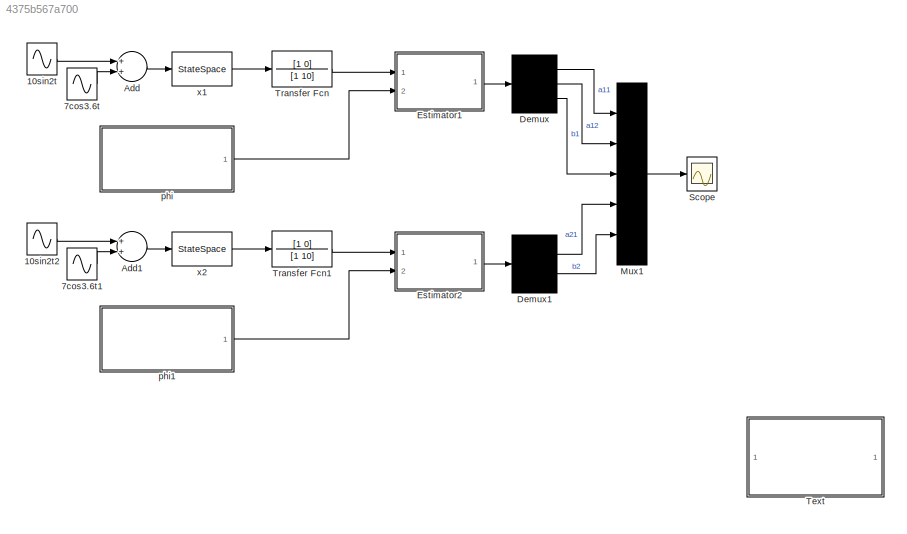
MODEL slx_4375b567a700
KIND model
CONFIG AbsTol = 1e-3
CONFIG FixedStep = auto
CONFIG MaxStep = 0.1
CONFIG MinStep = 0.0001
CONFIG RelTol = 1e-3
CONFIG SampleTimeConstraint = Unconstrained
CONFIG Solver = ode45
CONFIG SolverMode = Auto
CONFIG SolverName = ode45
CONFIG StartTime = 0.0
CONFIG StopTime = 50
BLOCK [Sin] 10sin2t
  Amplitude = 10
  Frequency = 2
  Ports = [0, 1]
BLOCK [Sin] 10sin2t2
  Amplitude = 10
  Frequency = 2
  Ports = [0, 1]
BLOCK [Sin] 7cos3.6t
  Amplitude = 7
  Frequency = 3.6
  Phase = 90
  Ports = [0, 1]
BLOCK [Sin] 7cos3.6t1
  Amplitude = 7
  Frequency = 3.6
  Phase = 90
  Ports = [0, 1]
BLOCK [Sum] Add
  InputSameDT = off
  OutDataTypeStr = Inherit: Inherit via internal rule
  Ports = [2, 1]
  SaturateOnIntegerOverflow = off
BLOCK [Sum] Add1
  InputSameDT = off
  OutDataTypeStr = Inherit: Inherit via internal rule
  Ports = [2, 1]
  SaturateOnIntegerOverflow = off
BLOCK [Demux] Demux
  Outputs = 3
  Ports = [1, 3]
BLOCK [Demux] Demux1
  Outputs = 2
  Ports = [1, 2]
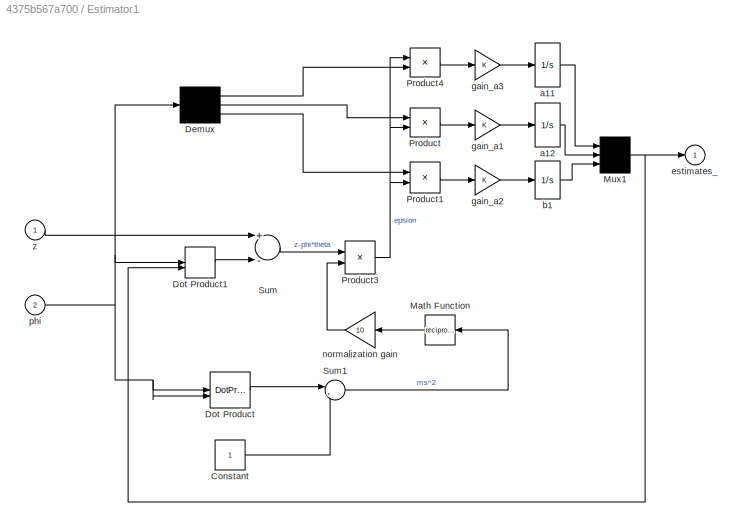
BLOCK [SubSystem] Estimator1
  Ports = [2, 1]
  RequestExecContextInheritance = off
  ShowPortLabels = none
BLOCK [Constant] Estimator1/Constant
BLOCK [Demux] Estimator1/Demux
  Outputs = 3
  Ports = [1, 3]
BLOCK [DotProduct] Estimator1/Dot Product
  OutDataTypeStr = Inherit: Inherit via internal rule
BLOCK [DotProduct] Estimator1/Dot Product1
  OutDataTypeStr = Inherit: Inherit via internal rule
BLOCK [Math] Estimator1/Math Function
  Operator = reciprocal
  Ports = [1, 1]
BLOCK [Mux] Estimator1/Mux1
  Inputs = 3
  Ports = [3, 1]
BLOCK [Product] Estimator1/Product
  Ports = [2, 1]
BLOCK [Product] Estimator1/Product1
  Ports = [2, 1]
BLOCK [Product] Estimator1/Product3
  Ports = [2, 1]
BLOCK [Product] Estimator1/Product4
  Ports = [2, 1]
BLOCK [Sum] Estimator1/Sum
  Inputs = +-
  Ports = [2, 1]
BLOCK [Sum] Estimator1/Sum1
  IconShape = round
  InputSameDT = off
  Inputs = |++
  OutDataTypeStr = Inherit: Inherit via internal rule
  Ports = [2, 1]
  SaturateOnIntegerOverflow = off
BLOCK [Integrator] Estimator1/a11
  Ports = [1, 1]
BLOCK [Integrator] Estimator1/a12
  Ports = [1, 1]
BLOCK [Integrator] Estimator1/b1
  Ports = [1, 1]
BLOCK [Outport] Estimator1/estimates_
  IconDisplay = Port number
BLOCK [Gain] Estimator1/gain_a1
BLOCK [Gain] Estimator1/gain_a2
BLOCK [Gain] Estimator1/gain_a3
BLOCK [Gain] Estimator1/normalization gain
  Gain = 10
BLOCK [Inport] Estimator1/phi
  IconDisplay = Port number
  Port = 2
BLOCK [Inport] Estimator1/z
  IconDisplay = Port number
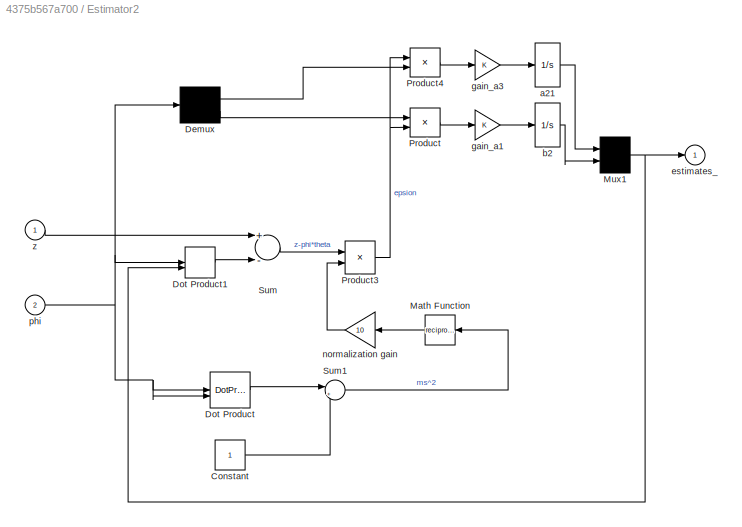
BLOCK [SubSystem] Estimator2
  Ports = [2, 1]
  RequestExecContextInheritance = off
  ShowPortLabels = none
BLOCK [Constant] Estimator2/Constant
BLOCK [Demux] Estimator2/Demux
  Outputs = 2
  Ports = [1, 2]
BLOCK [DotProduct] Estimator2/Dot Product
  OutDataTypeStr = Inherit: Inherit via internal rule
BLOCK [DotProduct] Estimator2/Dot Product1
  OutDataTypeStr = Inherit: Inherit via internal rule
BLOCK [Math] Estimator2/Math Function
  Operator = reciprocal
  Ports = [1, 1]
BLOCK [Mux] Estimator2/Mux1
  Inputs = 2
  Ports = [2, 1]
BLOCK [Product] Estimator2/Product
  Ports = [2, 1]
BLOCK [Product] Estimator2/Product3
  Ports = [2, 1]
BLOCK [Product] Estimator2/Product4
  Ports = [2, 1]
BLOCK [Sum] Estimator2/Sum
  Inputs = +-
  Ports = [2, 1]
BLOCK [Sum] Estimator2/Sum1
  IconShape = round
  InputSameDT = off
  Inputs = |++
  OutDataTypeStr = Inherit: Inherit via internal rule
  Ports = [2, 1]
  SaturateOnIntegerOverflow = off
BLOCK [Integrator] Estimator2/a21
  Ports = [1, 1]
BLOCK [Integrator] Estimator2/b2
  Ports = [1, 1]
BLOCK [Outport] Estimator2/estimates_
  IconDisplay = Port number
BLOCK [Gain] Estimator2/gain_a1
BLOCK [Gain] Estimator2/gain_a3
BLOCK [Gain] Estimator2/normalization gain
  Gain = 10
BLOCK [Inport] Estimator2/phi
  IconDisplay = Port number
  Port = 2
BLOCK [Inport] Estimator2/z
  IconDisplay = Port number
BLOCK [Mux] Mux1
  Inputs = 5
  Ports = [5, 1]
BLOCK [Scope] Scope
  Floating = off
  LegendLocations = 0.82708     0.35555    0.075453     0.13238
  NumInputPorts = 1
  Ports = [1]
  ShowLegends = on
  TickLabels = on
BLOCK [SubSystem] Text
  Ports = []
  RequestExecContextInheritance = off
  ShowPortLabels = none
BLOCK [TransferFcn] Transfer Fcn
  Denominator = [1 10]
  Numerator = [1 0]
BLOCK [TransferFcn] Transfer Fcn1
  Denominator = [1 10]
  Numerator = [1 0]
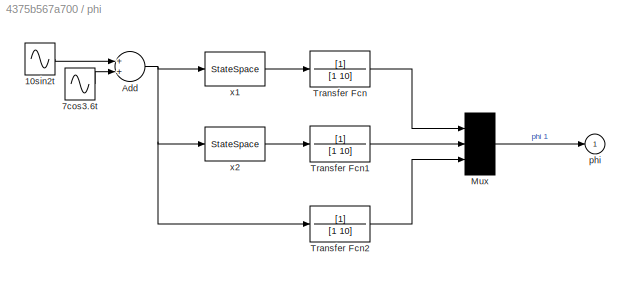
BLOCK [SubSystem] phi
  Ports = [0, 1]
  RequestExecContextInheritance = off
  ShowPortLabels = none
BLOCK [Sin] phi/10sin2t
  Amplitude = 10
  Frequency = 2
  Ports = [0, 1]
BLOCK [Sin] phi/7cos3.6t
  Amplitude = 7
  Frequency = 3.6
  Phase = 90
  Ports = [0, 1]
BLOCK [Sum] phi/Add
  InputSameDT = off
  OutDataTypeStr = Inherit: Inherit via internal rule
  Ports = [2, 1]
  SaturateOnIntegerOverflow = off
BLOCK [Mux] phi/Mux
  Inputs = 3
  Ports = [3, 1]
BLOCK [TransferFcn] phi/Transfer Fcn
  Denominator = [1 10]
BLOCK [TransferFcn] phi/Transfer Fcn1
  Denominator = [1 10]
BLOCK [TransferFcn] phi/Transfer Fcn2
  Denominator = [1 10]
BLOCK [Outport] phi/phi
  IconDisplay = Port number
BLOCK [StateSpace] phi/x1
  A = [-0.25 3; -5 0]
  B = [1; 2.2]
  C = [1 0]
  D = 0
  Ports = [1, 1]
  X0 = 0
BLOCK [StateSpace] phi/x2
  A = [-0.25 3; -5 0]
  B = [1; 2.2]
  C = [0 1]
  D = 0
  Ports = [1, 1]
  X0 = 0
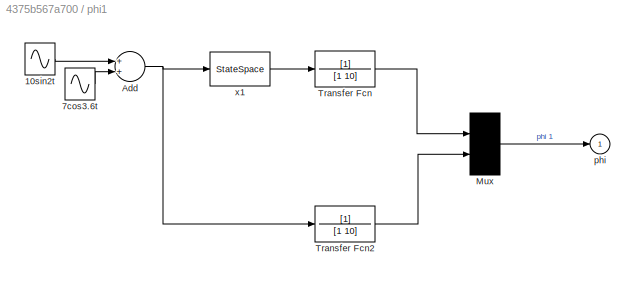
BLOCK [SubSystem] phi1
  Ports = [0, 1]
  RequestExecContextInheritance = off
  ShowPortLabels = none
BLOCK [Sin] phi1/10sin2t
  Amplitude = 10
  Frequency = 2
  Ports = [0, 1]
BLOCK [Sin] phi1/7cos3.6t
  Amplitude = 7
  Frequency = 3.6
  Phase = 90
  Ports = [0, 1]
BLOCK [Sum] phi1/Add
  InputSameDT = off
  OutDataTypeStr = Inherit: Inherit via internal rule
  Ports = [2, 1]
  SaturateOnIntegerOverflow = off
BLOCK [Mux] phi1/Mux
  Inputs = 2
  Ports = [2, 1]
BLOCK [TransferFcn] phi1/Transfer Fcn
  Denominator = [1 10]
BLOCK [TransferFcn] phi1/Transfer Fcn2
  Denominator = [1 10]
BLOCK [Outport] phi1/phi
  IconDisplay = Port number
BLOCK [StateSpace] phi1/x1
  A = [-0.25 3; -5 0]
  B = [1; 2.2]
  C = [1 0]
  D = 0
  Ports = [1, 1]
  X0 = 0
BLOCK [StateSpace] x1
  A = [-0.25 3; -5 0]
  B = [1; 2.2]
  C = [1 0]
  D = 0
  Ports = [1, 1]
  X0 = 0
BLOCK [StateSpace] x2
  A = [-0.25 3; -5 0]
  B = [1; 2.2]
  C = [0 1]
  D = 0
  Ports = [1, 1]
  X0 = 0
ANNOTATION Text: 1) The adaptive gain (gain_a1, gain_a2 in the Estimator block)
ANNOTATION Text: 2) The normalization gain alpha in the Estimator block
ANNOTATION Text: 3) The transfer function W(s) in the receiver and in the Estimator block
ANNOTATION Text: 4) The noise level (the gain in the Noise Source block)
ANNOTATION Text: You can use Start/Stop in the Simulation pull-down menu to run the program. Or you can change the following parameters to see how they affect the simulation results:
LINE 10sin2t2:1 -> Add1:1
LINE 10sin2t:1 -> Add:1
LINE 7cos3.6t1:1 -> Add1:2
LINE 7cos3.6t:1 -> Add:2
LINE Add1:1 -> x2:1
LINE Add:1 -> x1:1
LINE Demux1:1 -> Mux1:4
LINE Demux1:2 -> Mux1:5
LINE Demux:1 -> Mux1:1
LINE Demux:2 -> Mux1:2
LINE Demux:3 -> Mux1:3
LINE Estimator1/Constant:1 -> Estimator1/Sum1:2
LINE Estimator1/Demux:1 -> Estimator1/Product4:2
LINE Estimator1/Demux:2 -> Estimator1/Product:1
LINE Estimator1/Demux:3 -> Estimator1/Product1:1
LINE Estimator1/Dot Product1:1 -> Estimator1/Sum:2
LINE Estimator1/Dot Product:1 -> Estimator1/Sum1:1
LINE Estimator1/Math Function:1 -> Estimator1/normalization gain:1
NET Estimator1/Mux1:1 -> Estimator1/Dot Product1:2, Estimator1/estimates_:1
LINE Estimator1/Product1:1 -> Estimator1/gain_a2:1
NET Estimator1/Product3:1 -> Estimator1/Product1:2, Estimator1/Product4:1, Estimator1/Product:2
LINE Estimator1/Product4:1 -> Estimator1/gain_a3:1
LINE Estimator1/Product:1 -> Estimator1/gain_a1:1
LINE Estimator1/Sum1:1 -> Estimator1/Math Function:1
LINE Estimator1/Sum:1 -> Estimator1/Product3:1
LINE Estimator1/a11:1 -> Estimator1/Mux1:1
LINE Estimator1/a12:1 -> Estimator1/Mux1:2
LINE Estimator1/b1:1 -> Estimator1/Mux1:3
LINE Estimator1/gain_a1:1 -> Estimator1/a12:1
LINE Estimator1/gain_a2:1 -> Estimator1/b1:1
LINE Estimator1/gain_a3:1 -> Estimator1/a11:1
LINE Estimator1/normalization gain:1 -> Estimator1/Product3:2
NET Estimator1/phi:1 -> Estimator1/Demux:1, Estimator1/Dot Product1:1, Estimator1/Dot Product:1, Estimator1/Dot Product:2
LINE Estimator1/z:1 -> Estimator1/Sum:1
LINE Estimator1:1 -> Demux:1
LINE Estimator2/Constant:1 -> Estimator2/Sum1:2
LINE Estimator2/Demux:1 -> Estimator2/Product4:2
LINE Estimator2/Demux:2 -> Estimator2/Product:1
LINE Estimator2/Dot Product1:1 -> Estimator2/Sum:2
LINE Estimator2/Dot Product:1 -> Estimator2/Sum1:1
LINE Estimator2/Math Function:1 -> Estimator2/normalization gain:1
NET Estimator2/Mux1:1 -> Estimator2/Dot Product1:2, Estimator2/estimates_:1
NET Estimator2/Product3:1 -> Estimator2/Product4:1, Estimator2/Product:2
LINE Estimator2/Product4:1 -> Estimator2/gain_a3:1
LINE Estimator2/Product:1 -> Estimator2/gain_a1:1
LINE Estimator2/Sum1:1 -> Estimator2/Math Function:1
LINE Estimator2/Sum:1 -> Estimator2/Product3:1
LINE Estimator2/a21:1 -> Estimator2/Mux1:1
LINE Estimator2/b2:1 -> Estimator2/Mux1:2
LINE Estimator2/gain_a1:1 -> Estimator2/b2:1
LINE Estimator2/gain_a3:1 -> Estimator2/a21:1
LINE Estimator2/normalization gain:1 -> Estimator2/Product3:2
NET Estimator2/phi:1 -> Estimator2/Demux:1, Estimator2/Dot Product1:1, Estimator2/Dot Product:1, Estimator2/Dot Product:2
LINE Estimator2/z:1 -> Estimator2/Sum:1
LINE Estimator2:1 -> Demux1:1
LINE Mux1:1 -> Scope:1
LINE Transfer Fcn1:1 -> Estimator2:1
LINE Transfer Fcn:1 -> Estimator1:1
LINE phi/10sin2t:1 -> phi/Add:1
LINE phi/7cos3.6t:1 -> phi/Add:2
NET phi/Add:1 -> phi/Transfer Fcn2:1, phi/x1:1, phi/x2:1
LINE phi/Mux:1 -> phi/phi:1
LINE phi/Transfer Fcn1:1 -> phi/Mux:2
LINE phi/Transfer Fcn2:1 -> phi/Mux:3
LINE phi/Transfer Fcn:1 -> phi/Mux:1
LINE phi/x1:1 -> phi/Transfer Fcn:1
LINE phi/x2:1 -> phi/Transfer Fcn1:1
LINE phi1/10sin2t:1 -> phi1/Add:1
LINE phi1/7cos3.6t:1 -> phi1/Add:2
NET phi1/Add:1 -> phi1/Transfer Fcn2:1, phi1/x1:1
LINE phi1/Mux:1 -> phi1/phi:1
LINE phi1/Transfer Fcn2:1 -> phi1/Mux:2
LINE phi1/Transfer Fcn:1 -> phi1/Mux:1
LINE phi1/x1:1 -> phi1/Transfer Fcn:1
LINE phi1:1 -> Estimator2:2
LINE phi:1 -> Estimator1:2
LINE x1:1 -> Transfer Fcn:1
LINE x2:1 -> Transfer Fcn1:1
note: NET lines group one-source signal fan-out (src -> all destinations, sorted); 1:1 wires keep LINE
